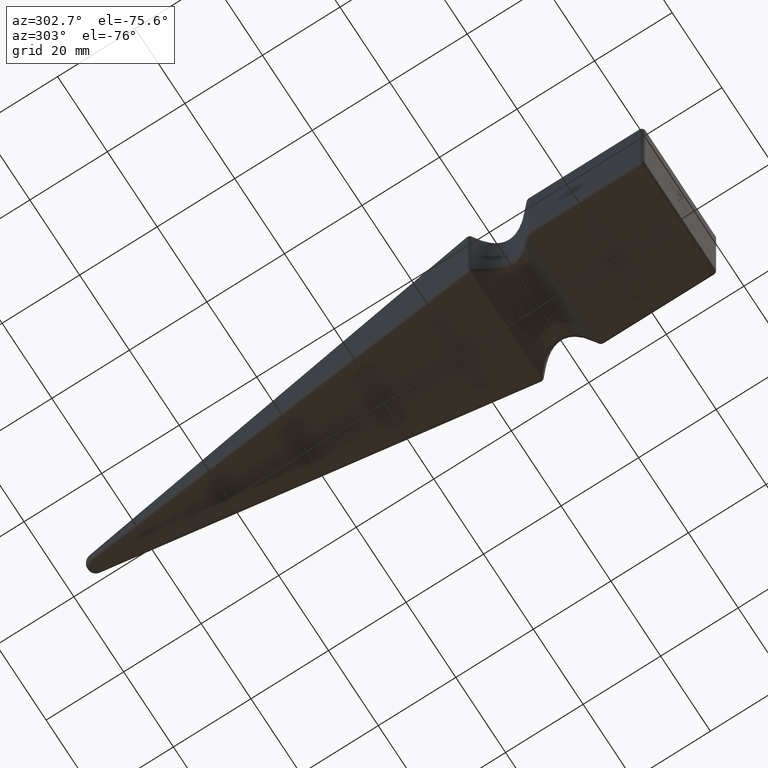
[diagram: clean part render]
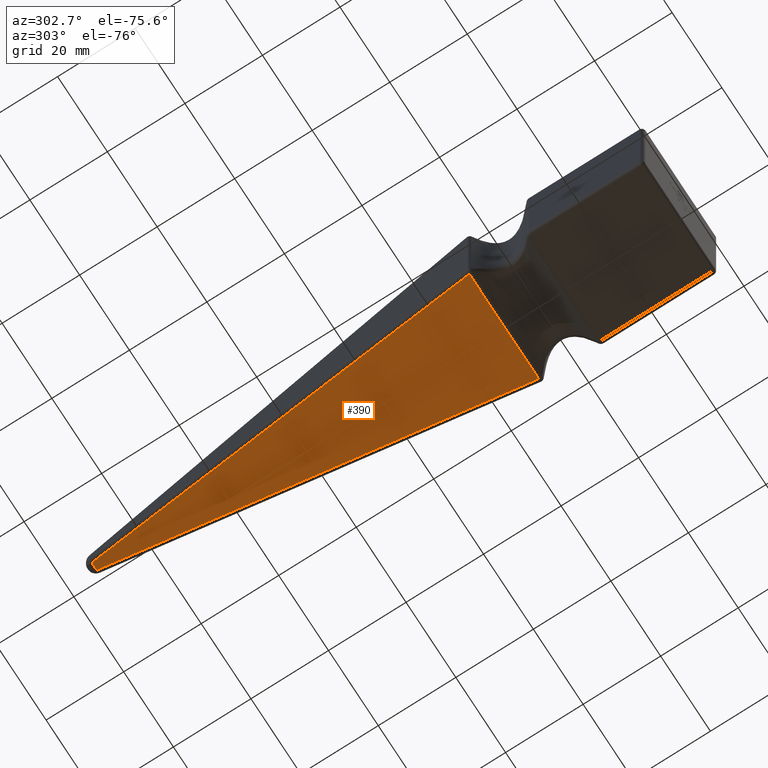
[diagram: same view with one face highlighted and labeled with its STEP entity id]
A machine part, auxiliary view. The second image highlights one B-rep face of the part: STEP entity #390.
In plain terms, the highlighted planar face has unit normal (0, 0.1216, -0.9926).
Its self-contained STEP definition (entity closure, byte-faithful):
#74 = CARTESIAN_POINT ( 'NONE',  ( -0.9925802220437617285, 74.74318308171048386, -1.985160444087528564 ) ) ;
#284 = VECTOR ( 'NONE', #5087, 1000.000000000000114 ) ;
#390 = ADVANCED_FACE ( 'NONE', ( #11841 ), #2128, .T. ) ;
#1133 = DIRECTION ( 'NONE',  ( 0.000000000000000000, 0.9925802220437630607, 0.1215915408552494942 ) ) ;
#1604 = CARTESIAN_POINT ( 'NONE',  ( -13.94205719625426632, -30.96642993909971509, -14.93463741829802771 ) ) ;
#1654 = LINE ( 'NONE', #3177, #3642 ) ;
#1727 = ORIENTED_EDGE ( 'NONE', *, *, #2333, .T. ) ;
#2128 = PLANE ( 'NONE',  #12700 ) ;
#2333 = EDGE_CURVE ( 'NONE', #3836, #4545, #1654, .T. ) ;
#2996 = CARTESIAN_POINT ( 'NONE',  ( 0.9925802220437599521, 74.74318308171048386, -1.985160444087528564 ) ) ;
#3177 = CARTESIAN_POINT ( 'NONE',  ( -10.05701844245489696, 0.7480511980830958363, -11.04959866449865835 ) ) ;
#3642 = VECTOR ( 'NONE', #9972, 1000.000000000000114 ) ;
#3836 = VERTEX_POINT ( 'NONE', #1604 ) ;
#4545 = VERTEX_POINT ( 'NONE', #74 ) ;
#4958 = ORIENTED_EDGE ( 'NONE', *, *, #7280, .T. ) ;
#5087 = DIRECTION ( 'NONE',  ( 0.1207025510154213221, -0.9853231897995394784, -0.1207025510154212250 ) ) ;
#5583 = CARTESIAN_POINT ( 'NONE',  ( 13.94205719625426632, -30.96642993909969377, -14.93463741829802593 ) ) ;
#5721 = EDGE_CURVE ( 'NONE', #8119, #3836, #9249, .T. ) ;
#5807 = VECTOR ( 'NONE', #11178, 1000.000000000000000 ) ;
#5894 = ORIENTED_EDGE ( 'NONE', *, *, #5721, .T. ) ;
#5978 = LINE ( 'NONE', #12304, #5807 ) ;
#6090 = CARTESIAN_POINT ( 'NONE',  ( -15.00009999999999977, 1.344628540873257228, -10.97651766133316542 ) ) ;
#6170 = CARTESIAN_POINT ( 'NONE',  ( 14.02188078424764228, -31.61804858080369840, -15.01446100629140190 ) ) ;
#6918 = VERTEX_POINT ( 'NONE', #2996 ) ;
#7166 = LINE ( 'NONE', #6170, #284 ) ;
#7280 = EDGE_CURVE ( 'NONE', #4545, #6918, #5978, .T. ) ;
#7379 = CARTESIAN_POINT ( 'NONE',  ( 4.647352398751422697, -30.96642993909969377, -14.93463741829802593 ) ) ;
#7987 = CARTESIAN_POINT ( 'NONE',  ( 13.94205719625426632, -30.96642993909969377, -14.93463741829802593 ) ) ;
#8119 = VERTEX_POINT ( 'NONE', #7987 ) ;
#8173 = EDGE_CURVE ( 'NONE', #6918, #8119, #7166, .T. ) ;
#8993 = DIRECTION ( 'NONE',  ( 0.000000000000000000, 0.1215915408552495081, -0.9925802220437631718 ) ) ;
#9249 = B_SPLINE_CURVE_WITH_KNOTS ( 'NONE', 3,
 ( #5583, #7379, #11280, #12378 ),
 .UNSPECIFIED., .F., .F.,
 ( 4, 4 ),
 ( 0.000000000000000000, 0.02788411439250853413 ),
 .UNSPECIFIED. ) ;
#9972 = DIRECTION ( 'NONE',  ( 0.1207025510154213083, 0.9853231897995394784, 0.1207025510154212250 ) ) ;
#10252 = EDGE_LOOP ( 'NONE', ( #10926, #5894, #1727, #4958 ) ) ;
#10926 = ORIENTED_EDGE ( 'NONE', *, *, #8173, .T. ) ;
#11178 = DIRECTION ( 'NONE',  ( 1.000000000000000000, -0.000000000000000000, -0.000000000000000000 ) ) ;
#11280 = CARTESIAN_POINT ( 'NONE',  ( -4.647352398751422697, -30.96642993909968666, -14.93463741829802416 ) ) ;
#11841 = FACE_OUTER_BOUND ( 'NONE', #10252, .T. ) ;
#12304 = CARTESIAN_POINT ( 'NONE',  ( -15.00009999999999977, 74.74318308171048386, -1.985160444087528564 ) ) ;
#12378 = CARTESIAN_POINT ( 'NONE',  ( -13.94205719625426632, -30.96642993909971509, -14.93463741829802771 ) ) ;
#12700 = AXIS2_PLACEMENT_3D ( 'NONE', #6090, #8993, #1133 ) ;